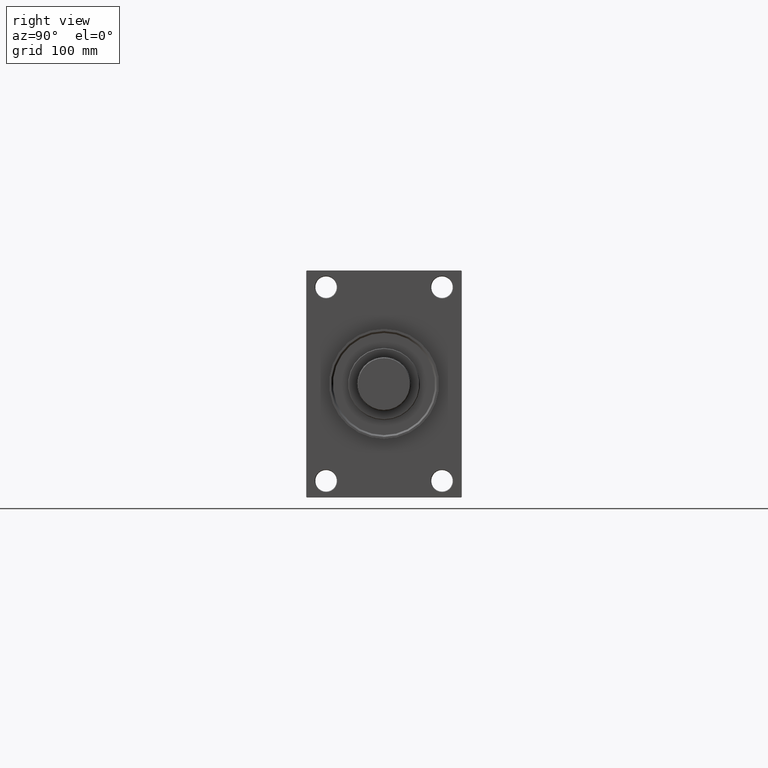
[diagram: clean part render]
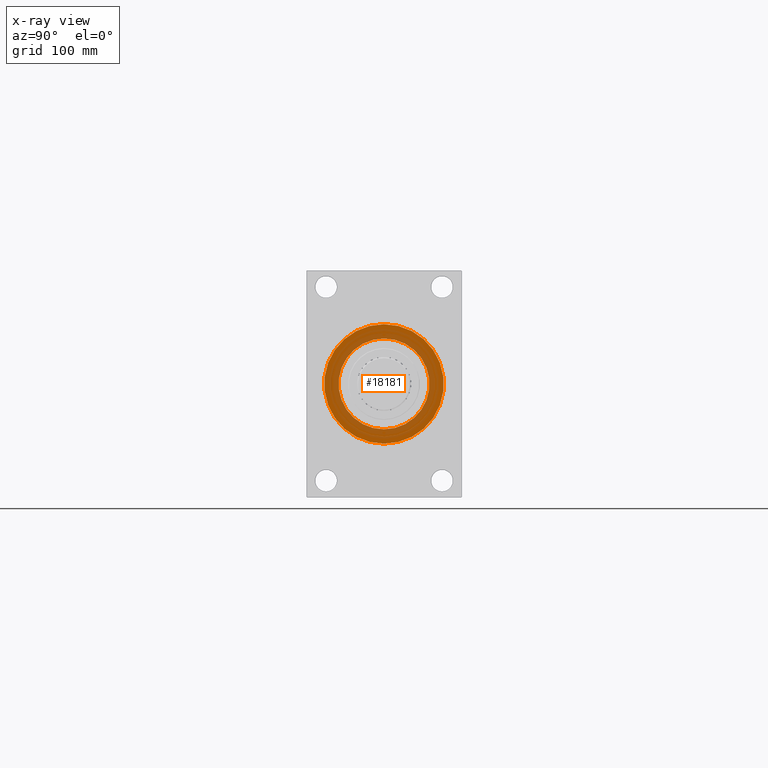
[diagram: x-ray — body ghosted, one internal face saturated and labeled with its STEP entity id]
A machine part, right view, then the same camera in x-ray: the body is ghosted and one INTERNAL B-rep face — a face not visible from any outside direction — is saturated and labeled: STEP entity #18181.
In plain terms, the highlighted planar face has unit normal (-1, 0, 0).
Its self-contained STEP definition (entity closure, byte-faithful):
#2913 = DIRECTION ( 'NONE',  ( 0.000000000000000000, 0.000000000000000000, 1.000000000000000000 ) ) ;
#3999 = CARTESIAN_POINT ( 'NONE',  ( 395.9999999999999432, 0.000000000000000000, -38.00000000000000000 ) ) ;
#5434 = EDGE_CURVE ( 'NONE', #15349, #33198, #23590, .T. ) ;
#8018 = DIRECTION ( 'NONE',  ( 1.000000000000000000, 0.000000000000000000, 0.000000000000000000 ) ) ;
#10331 = AXIS2_PLACEMENT_3D ( 'NONE', #31666, #16999, #31900 ) ;
#10772 = CARTESIAN_POINT ( 'NONE',  ( 395.9999999999999432, 0.000000000000000000, 0.000000000000000000 ) ) ;
#13696 = CARTESIAN_POINT ( 'NONE',  ( 395.9999999999999432, 0.000000000000000000, 0.000000000000000000 ) ) ;
#14914 = EDGE_LOOP ( 'NONE', ( #19791, #28560 ) ) ;
#15096 = FACE_BOUND ( 'NONE', #29421, .T. ) ;
#15349 = VERTEX_POINT ( 'NONE', #42592 ) ;
#15580 = DIRECTION ( 'NONE',  ( -1.000000000000000000, 0.000000000000000000, -0.000000000000000000 ) ) ;
#16627 = AXIS2_PLACEMENT_3D ( 'NONE', #10772, #44234, #33246 ) ;
#16999 = DIRECTION ( 'NONE',  ( 1.000000000000000000, 0.000000000000000000, 0.000000000000000000 ) ) ;
#18181 = ADVANCED_FACE ( 'NONE', ( #15096, #48059 ), #29515, .T. ) ;
#19791 = ORIENTED_EDGE ( 'NONE', *, *, #37691, .F. ) ;
#23590 = CIRCLE ( 'NONE', #10331, 50.00000000000000000 ) ;
#25400 = DIRECTION ( 'NONE',  ( -1.000000000000000000, 0.000000000000000000, -0.000000000000000000 ) ) ;
#25848 = CARTESIAN_POINT ( 'NONE',  ( 395.9999999999999432, -2.602085213965210642E-15, 0.000000000000000000 ) ) ;
#25952 = AXIS2_PLACEMENT_3D ( 'NONE', #29755, #15580, #41469 ) ;
#26933 = VERTEX_POINT ( 'NONE', #3999 ) ;
#27249 = CIRCLE ( 'NONE', #28006, 50.00000000000000000 ) ;
#28006 = AXIS2_PLACEMENT_3D ( 'NONE', #25848, #8018, #37827 ) ;
#28099 = EDGE_CURVE ( 'NONE', #26933, #35670, #44194, .T. ) ;
#28560 = ORIENTED_EDGE ( 'NONE', *, *, #5434, .F. ) ;
#29421 = EDGE_LOOP ( 'NONE', ( #48035, #39801 ) ) ;
#29515 = PLANE ( 'NONE',  #25952 ) ;
#29755 = CARTESIAN_POINT ( 'NONE',  ( 395.9999999999999432, 0.000000000000000000, 0.000000000000000000 ) ) ;
#31666 = CARTESIAN_POINT ( 'NONE',  ( 395.9999999999999432, -2.602085213965210642E-15, 0.000000000000000000 ) ) ;
#31900 = DIRECTION ( 'NONE',  ( 0.000000000000000000, 0.000000000000000000, -1.000000000000000000 ) ) ;
#32254 = CIRCLE ( 'NONE', #16627, 38.00000000000000000 ) ;
#33198 = VERTEX_POINT ( 'NONE', #38229 ) ;
#33246 = DIRECTION ( 'NONE',  ( 0.000000000000000000, 0.000000000000000000, 1.000000000000000000 ) ) ;
#35670 = VERTEX_POINT ( 'NONE', #42047 ) ;
#37691 = EDGE_CURVE ( 'NONE', #33198, #15349, #27249, .T. ) ;
#37827 = DIRECTION ( 'NONE',  ( 0.000000000000000000, 0.000000000000000000, -1.000000000000000000 ) ) ;
#38229 = CARTESIAN_POINT ( 'NONE',  ( 395.9999999999999432, -2.602085213965210642E-15, 50.00000000000000000 ) ) ;
#39536 = AXIS2_PLACEMENT_3D ( 'NONE', #13696, #25400, #2913 ) ;
#39801 = ORIENTED_EDGE ( 'NONE', *, *, #44193, .F. ) ;
#41469 = DIRECTION ( 'NONE',  ( -0.000000000000000000, 0.000000000000000000, 1.000000000000000000 ) ) ;
#42047 = CARTESIAN_POINT ( 'NONE',  ( 395.9999999999999432, 4.653657836759941152E-15, 38.00000000000000000 ) ) ;
#42592 = CARTESIAN_POINT ( 'NONE',  ( 395.9999999999999432, 3.521148781771555838E-15, -50.00000000000000000 ) ) ;
#44193 = EDGE_CURVE ( 'NONE', #35670, #26933, #32254, .T. ) ;
#44194 = CIRCLE ( 'NONE', #39536, 38.00000000000000000 ) ;
#44234 = DIRECTION ( 'NONE',  ( -1.000000000000000000, 0.000000000000000000, -0.000000000000000000 ) ) ;
#48035 = ORIENTED_EDGE ( 'NONE', *, *, #28099, .F. ) ;
#48059 = FACE_OUTER_BOUND ( 'NONE', #14914, .T. ) ;